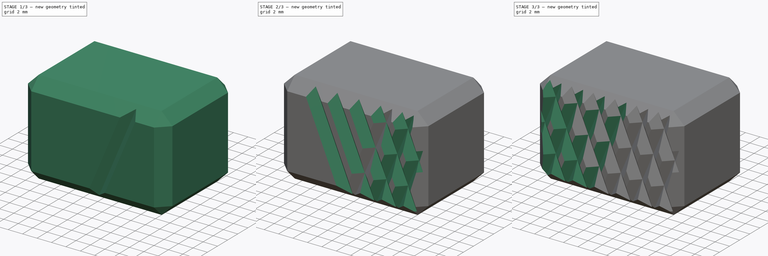
[diagram: build sequence overview — one tinted view per stage of 3, left to right]
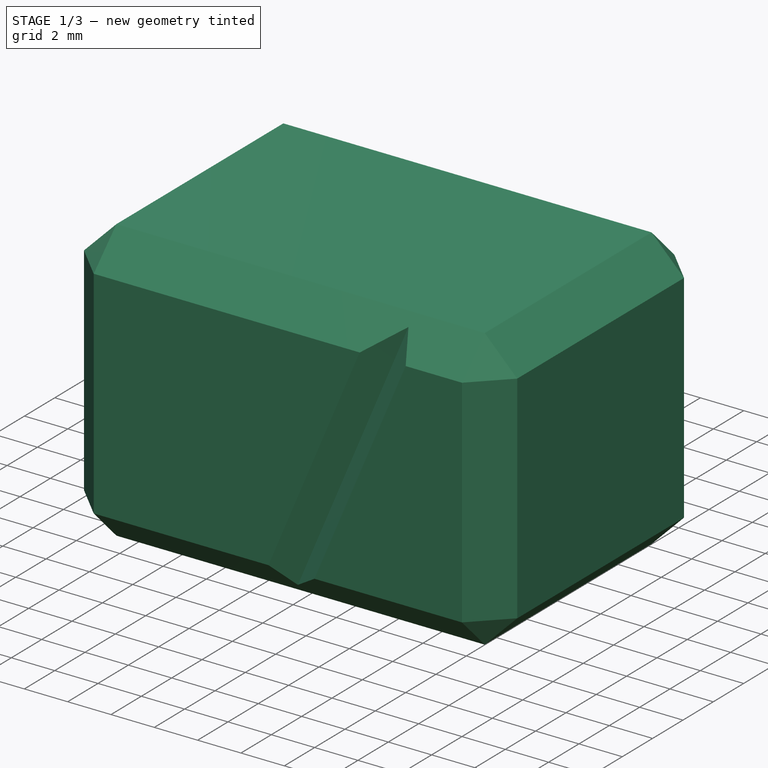
[diagram: stage 1 of 3 — iso view after this stage's code; geometry added in this stage tinted green]
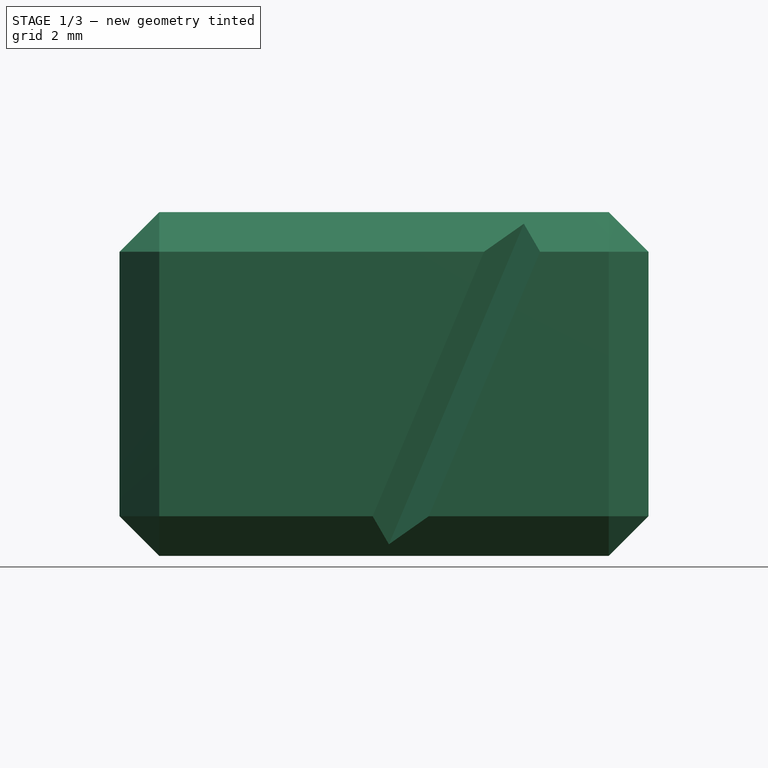
[diagram: stage 1 of 3 — front view after this stage's code; geometry added in this stage tinted green]
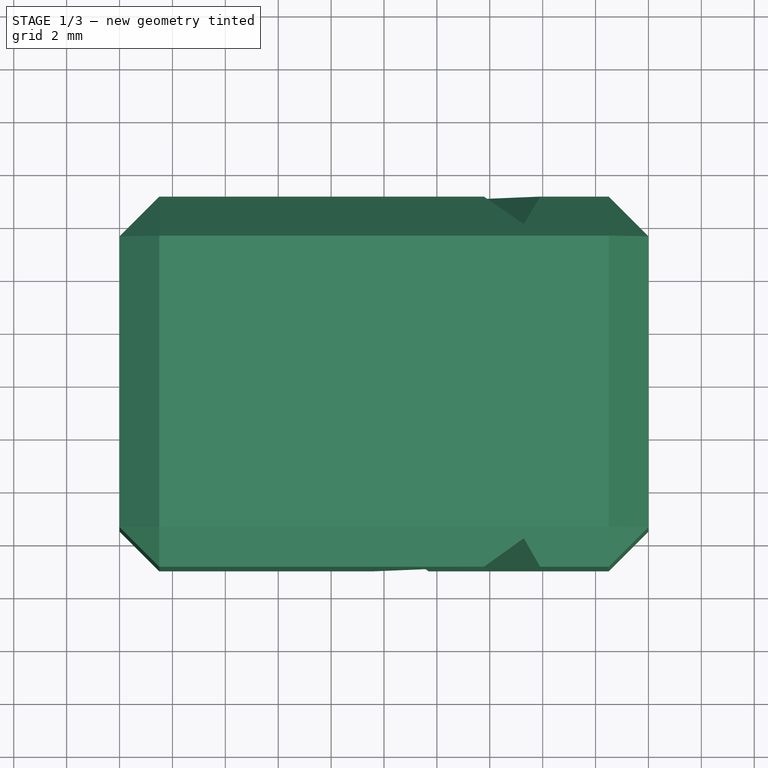
[diagram: stage 1 of 3 — top view after this stage's code; geometry added in this stage tinted green]
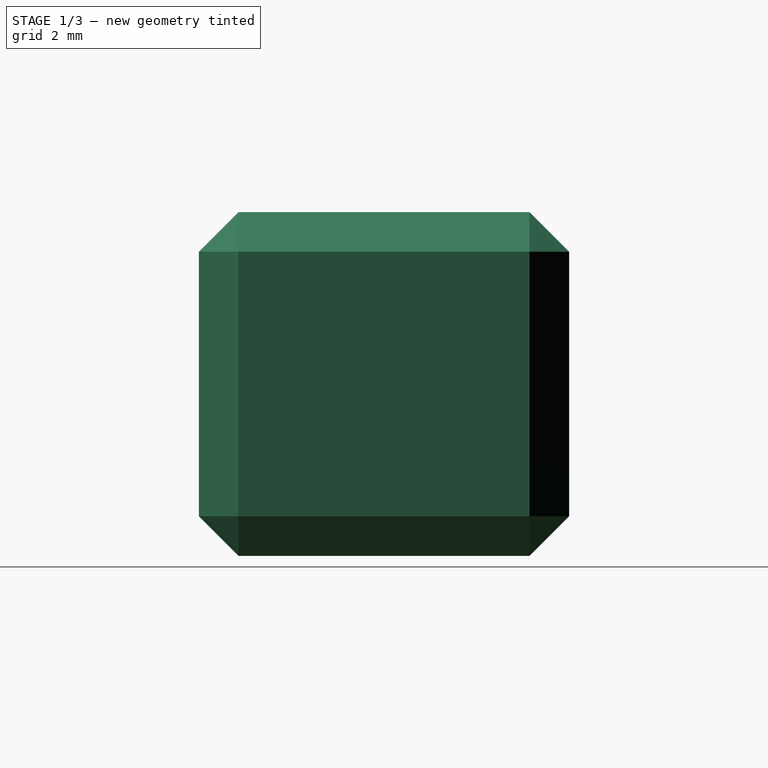
[diagram: stage 1 of 3 — right view after this stage's code; geometry added in this stage tinted green]
FCSTD DOCUMENT  (FreeCAD 0.21R33675 (Git))
Label: channel-knob
License: All rights reserved
LicenseURL: http://en.wikipedia.org/wiki/All_rights_reserved
objects: Sketcher::SketchObject×3, PartDesign::Pocket×3, PartDesign::Chamfer×2, PartDesign::LinearPattern×2, PartDesign::Pad×1, PartDesign::Body×1
note: 18 computed .brp shape members not serialized (recipe doc carries the construction recipe); baked Part::Feature solids carry a one-line shape summary decoded from their .brp

FEATURE [Sketcher::SketchObject] Sketch
  FullyConstrained = true
  MapMode = 5
  Support = -> [XY_Plane]
  sketch-geometry (4):
    g0: LineSegment StartX=-10 StartY=-7 StartZ=0 EndX=10 EndY=-7 EndZ=0
    g1: LineSegment StartX=10 StartY=-7 StartZ=0 EndX=10 EndY=7 EndZ=0
    g2: LineSegment StartX=10 StartY=7 StartZ=0 EndX=-10 EndY=7 EndZ=0
    g3: LineSegment StartX=-10 StartY=7 StartZ=0 EndX=-10 EndY=-7 EndZ=0
  constraints (10):
    c: Coincident(g0,g1)
    c: Coincident(g1,g2)
    c: Coincident(g2,g3)
    c: Coincident(g3,g0)
    c: Horizontal(g0)
    c: Vertical(g3)
    c: Symmetric(g2,g1,g-2)
    c: Symmetric(g1,g0,g-1)
    c: DistanceY(g1,g1) = 14
    c: DistanceX(g2,g2) = 20
FEATURE [PartDesign::Pad] Pad
  Direction = (0,0,1)
  Length = 13
  Length2 = 10
  Profile = -> Sketch
  ReferenceAxis = -> Sketch [N_Axis]
  Type = 0
FEATURE [PartDesign::Chamfer] Chamfer
  Angle = 45
  Base = -> Pad [Face6,Face1,Face2,Face3,Face4]
  BaseFeature = -> Pad
  ChamferType = 0
  FlipDirection = false
  Size = 1.5
  Size2 = 1
  SupportTransform = false
  UseAllEdges = false
FEATURE [Sketcher::SketchObject] Sketch001
  FullyConstrained = true
  MapMode = 5
  Placement = pos=(0,0,0) rot=(1,0,0;3.14159rad)
  Support = -> [Chamfer]
  sketch-geometry (12):
    g0: LineSegment StartX=0 StartY=5.93934 StartZ=0 EndX=1.06066 EndY=7 EndZ=0
    g1: LineSegment StartX=1.06066 StartY=7 StartZ=0 EndX=0 EndY=8.06066 EndZ=0
    g2: LineSegment StartX=0 StartY=8.06066 StartZ=0 EndX=-1.06066 EndY=7 EndZ=0
    g3: LineSegment StartX=-1.06066 StartY=7 StartZ=0 EndX=0 EndY=5.93934 EndZ=0
    g4: LineSegment StartX=-1.06066 StartY=7 StartZ=0 EndX=1.06066 EndY=7 EndZ=0
    g5: LineSegment StartX=0 StartY=0 StartZ=0 EndX=0 EndY=7 EndZ=0
    g6: LineSegment StartX=-5.8e-15 StartY=-8.06066 StartZ=0 EndX=1.06066 EndY=-7 EndZ=0
    g7: LineSegment StartX=1.06066 StartY=-7 StartZ=0 EndX=8.7e-15 EndY=-5.93934 EndZ=0
    g8: LineSegment StartX=8.7e-15 StartY=-5.93934 StartZ=0 EndX=-1.06066 EndY=-7 EndZ=0
    g9: LineSegment StartX=-1.06066 StartY=-7 StartZ=0 EndX=-5.8e-15 EndY=-8.06066 EndZ=0
    g10: LineSegment StartX=0 StartY=0 StartZ=0 EndX=0 EndY=-7 EndZ=0
    g11: LineSegment StartX=-1.06066 StartY=-7 StartZ=0 EndX=1.06066 EndY=-7 EndZ=0
  constraints (30):
    c: Coincident(g0,g1)
    c: Coincident(g1,g2)
    c: Coincident(g2,g3)
    c: Coincident(g3,g0)
    c: Parallel(g2,g0)
    c: Parallel(g3,g1)
    c: Angle(g1,g0) = 1.5708
    c: Distance(g1,g0) = 1.5
    c: Distance(g0,g0) = 1.5
    c: Coincident(g4,g2)
    c: Coincident(g4,g0)
    c: Symmetric(g2,g0,g-2)
    c: Coincident(g5,g-1)
    c: DistanceY(g5,g5) = 7
    c: Symmetric(g0,g1,g5)
    c: Coincident(g6,g7)
    c: Coincident(g7,g8)
    c: Coincident(g8,g9)
    c: Coincident(g9,g6)
    c: Symmetric(g8,g6,g-2)
    c: Coincident(g10,g5)
    c: PointOnObject(g10,g-2)
    c: DistanceY(g10,g10) = 7
    c: Symmetric(g7,g6,g10)
    c: Angle(g9,g8) = 1.5708
    c: Parallel(g9,g7)
    c: Coincident(g11,g8)
    c: Coincident(g11,g6)
    c: Distance(g7,g6) = 1.5
    c: Distance(g6,g6) = 1.5
FEATURE [PartDesign::Pocket] Pocket
  AlongSketchNormal = false
  BaseFeature = -> Chamfer
  Direction = (0.421,0,1)
  Length = 20
  Length2 = 5
  Profile = -> Sketch001
  ReferenceAxis = -> Sketch001 [N_Axis]
  Type = 4
  UseCustomVector = true
  expr: .Direction.x = 0.421
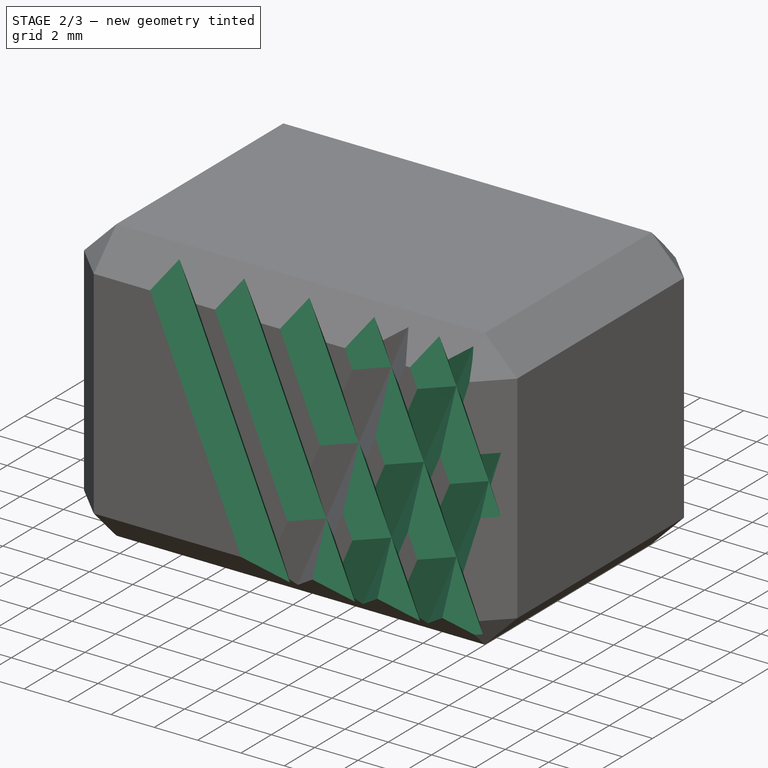
[diagram: stage 2 of 3 — iso view after this stage's code; geometry added in this stage tinted green]
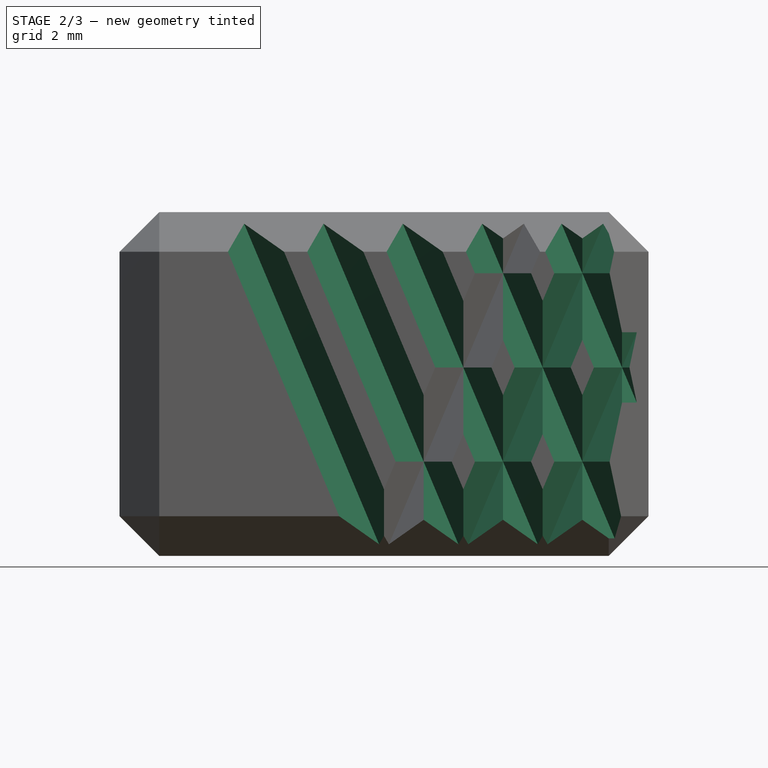
[diagram: stage 2 of 3 — front view after this stage's code; geometry added in this stage tinted green]
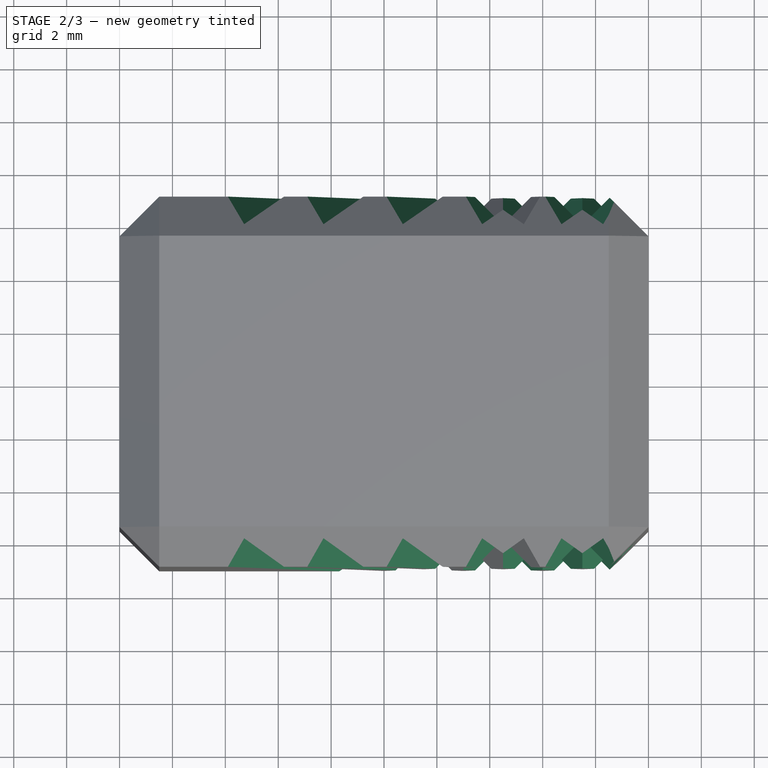
[diagram: stage 2 of 3 — top view after this stage's code; geometry added in this stage tinted green]
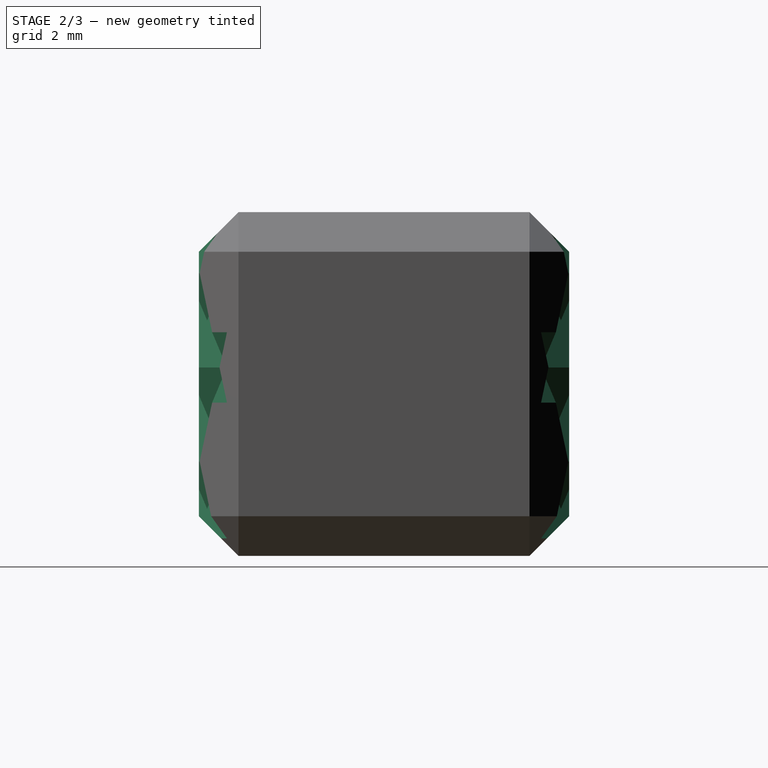
[diagram: stage 2 of 3 — right view after this stage's code; geometry added in this stage tinted green]
FEATURE [PartDesign::Pocket] Pocket001
  BaseFeature = -> Pocket
  Direction = (-0.421,0,1)
  Length = 20
  Length2 = 5
  Profile = -> Sketch001
  ReferenceAxis = -> Sketch001 [N_Axis]
  Type = 0
  UseCustomVector = true
FEATURE [PartDesign::LinearPattern] LinearPattern
  BaseFeature = -> Pocket001
  Direction = -> Sketch001 [H_Axis]
  Length = 12
  Occurrences = 5
  Originals = -> [Pocket,Pocket001]
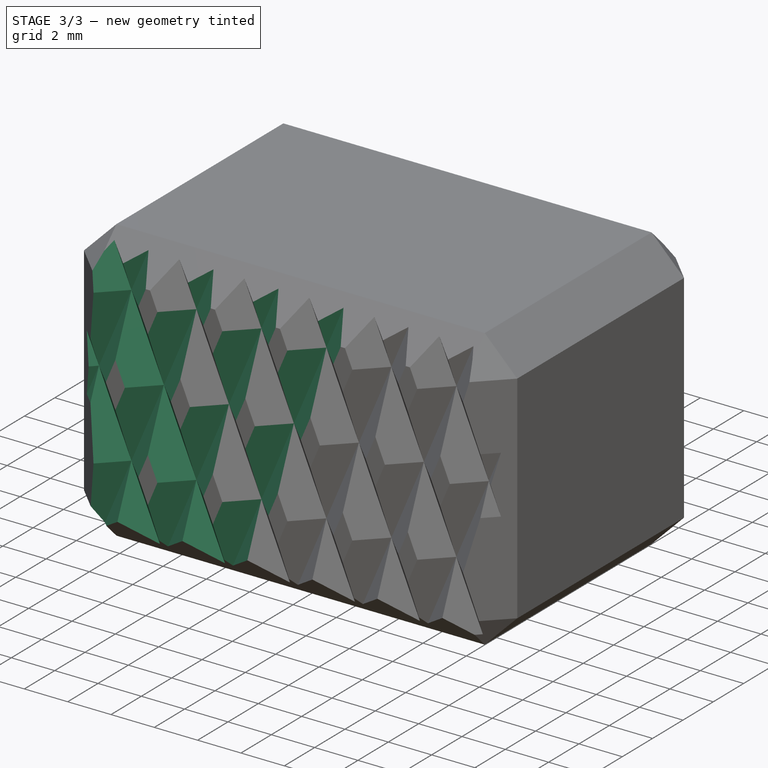
[diagram: stage 3 of 3 — iso view after this stage's code; geometry added in this stage tinted green]
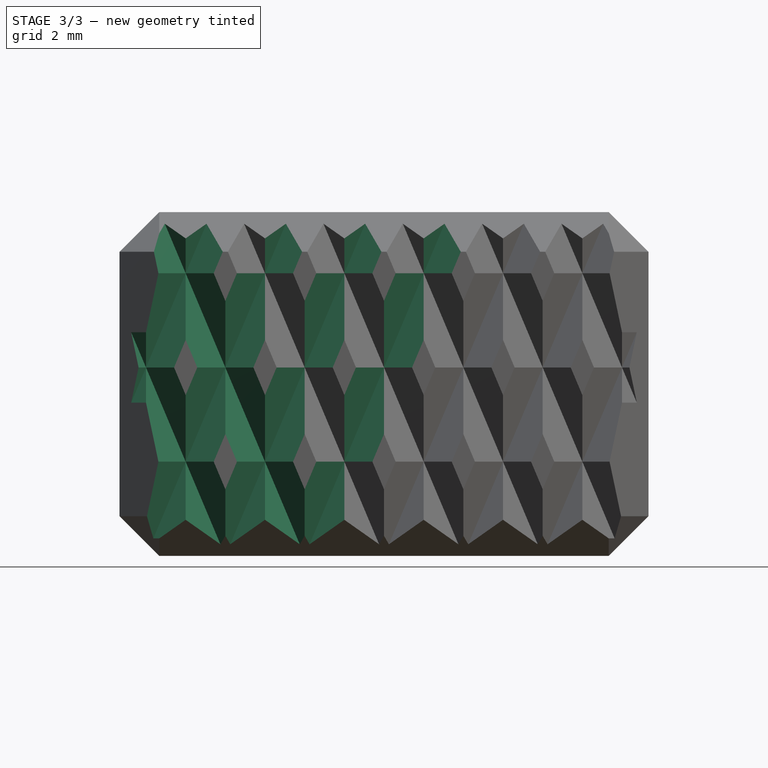
[diagram: stage 3 of 3 — front view after this stage's code; geometry added in this stage tinted green]
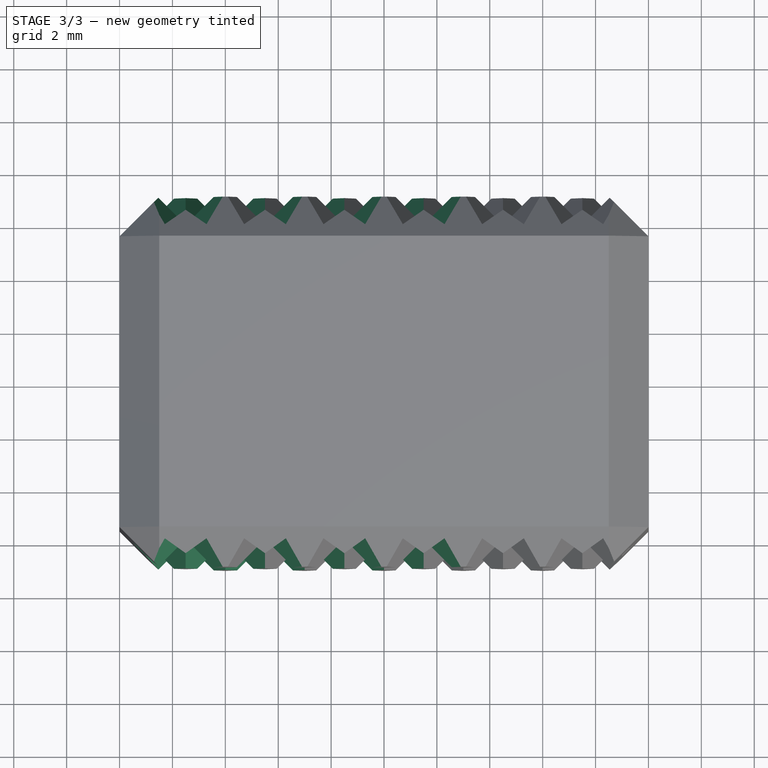
[diagram: stage 3 of 3 — top view after this stage's code; geometry added in this stage tinted green]
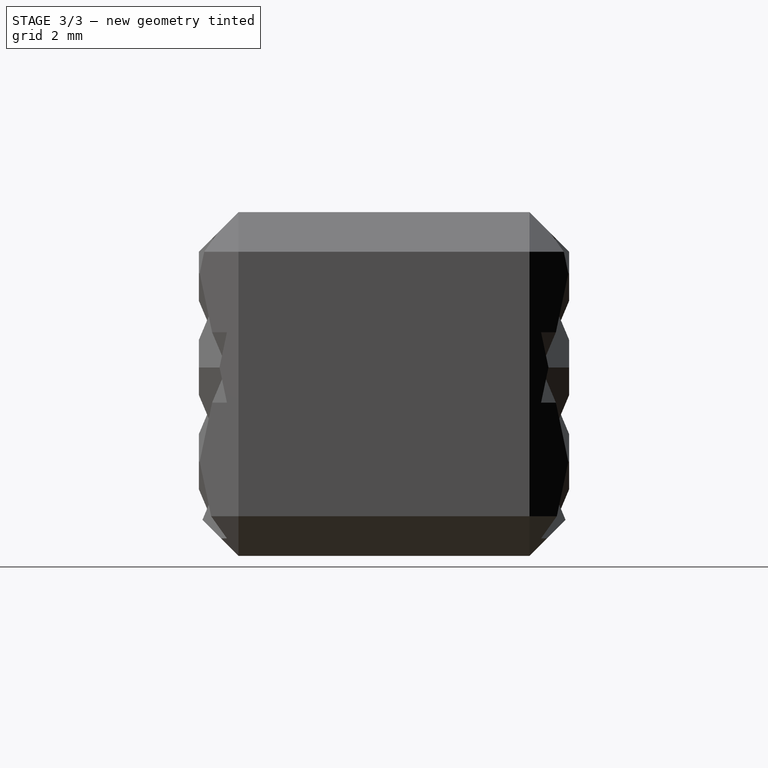
[diagram: stage 3 of 3 — right view after this stage's code; geometry added in this stage tinted green]
FEATURE [PartDesign::LinearPattern] LinearPattern001
  BaseFeature = -> LinearPattern
  Direction = -> Sketch001 [H_Axis]
  Length = 12
  Occurrences = 5
  Originals = -> [Pocket,Pocket001]
  Reversed = true
FEATURE [Sketcher::SketchObject] Sketch002
  FullyConstrained = true
  MapMode = 5
  Placement = pos=(0,0,0) rot=(0.57735,0.57735,0.57735;2.0944rad)
  Support = -> [YZ_Plane]
  sketch-geometry (10):
    g0: LineSegment StartX=2.75 StartY=0 StartZ=0 EndX=-2.75 EndY=0 EndZ=0
    g1: LineSegment StartX=-2.75 StartY=0 StartZ=0 EndX=-1.95 EndY=2.1 EndZ=0
    g2: LineSegment StartX=-1.95 StartY=2.1 StartZ=0 EndX=-2.2 EndY=2.8 EndZ=0
    g3: LineSegment StartX=-2.2 StartY=2.8 StartZ=0 EndX=-1.75 EndY=9.5 EndZ=0
    g4: LineSegment StartX=-1.75 StartY=9.5 StartZ=0 EndX=-1.6 EndY=11.5 EndZ=0
    g5: LineSegment StartX=-1.6 StartY=11.5 StartZ=0 EndX=1.6 EndY=11.5 EndZ=0
    g6: LineSegment StartX=1.6 StartY=11.5 StartZ=0 EndX=1.75 EndY=9.5 EndZ=0
    g7: LineSegment StartX=1.75 StartY=9.5 StartZ=0 EndX=2.2 EndY=2.8 EndZ=0
    g8: LineSegment StartX=2.2 StartY=2.8 StartZ=0 EndX=1.95 EndY=2.1 EndZ=0
    g9: LineSegment StartX=1.95 StartY=2.1 StartZ=0 EndX=2.75 EndY=0 EndZ=0
  constraints (25):
    c: Coincident(g0,g1)
    c: Coincident(g1,g2)
    c: Coincident(g2,g3)
    c: Coincident(g3,g4)
    c: Coincident(g4,g5)
    c: Coincident(g5,g6)
    c: Coincident(g6,g7)
    c: Coincident(g7,g8)
    c: Coincident(g8,g9)
    c: Coincident(g9,g0)
    c: Symmetric(g4,g5,g-2)
    c: Symmetric(g3,g6,g-2)
    c: Symmetric(g2,g7,g-2)
    c: Symmetric(g1,g8,g-2)
    c: Symmetric(g0,g0,g-2)
    c: PointOnObject(g-1,g0)
    c: Distance(g5,g-1) = 11.5
    c: DistanceX(g5,g5) = 3.2
    c: DistanceY(g3,g4) = 2
    c: Distance(g3,g6) = 3.5
    c: DistanceY(g1,g4) = 9.4
    c: Distance(g1,g8) = 3.9
    c: Distance(g2,g7) = 4.4
    c: Distance(g0,g0) = 5.5
    c: DistanceY(g7,g5) = 8.7
FEATURE [PartDesign::Pocket] Pocket002
  BaseFeature = -> LinearPattern001
  Direction = (-1,2e-16,-3e-16)
  Length = 1.5
  Length2 = 5
  Midplane = true
  Profile = -> Sketch002
  ReferenceAxis = -> Sketch002 [N_Axis]
  Type = 0
FEATURE [PartDesign::Chamfer] Chamfer001
  Angle = 45
  Base = -> Pocket002 [Edge52,Edge53,Edge54,Edge51]
  BaseFeature = -> Pocket002
  ChamferType = 0
  FlipDirection = false
  Size = 0.5
  Size2 = 1
  SupportTransform = false
  UseAllEdges = false
FEATURE [PartDesign::Body] Body
  Group = -> [Sketch,Pad,Chamfer,Sketch001,Pocket,Pocket001,LinearPattern,LinearPattern001,Sketch002,Pocket002,Chamfer001]
  Origin = -> Origin
  Tip = -> Chamfer001
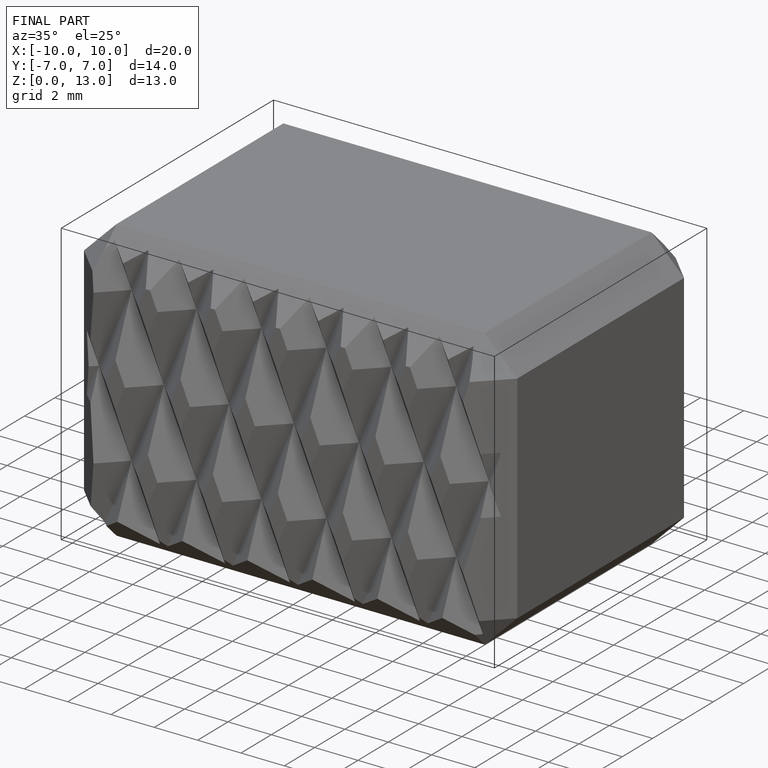
[diagram: finished part — iso view with bounding-box wireframe]
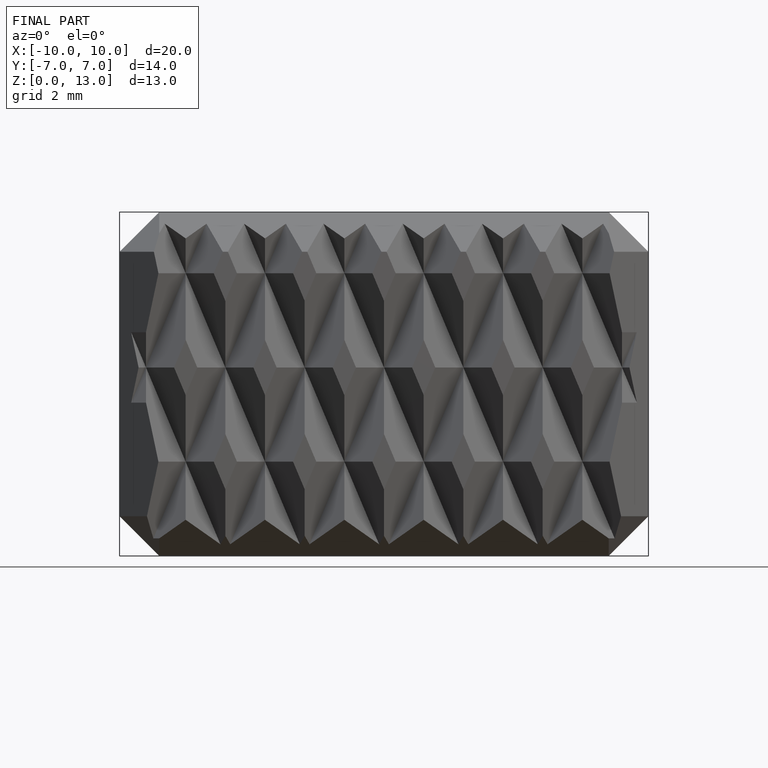
[diagram: finished part — front view with bounding-box wireframe]
